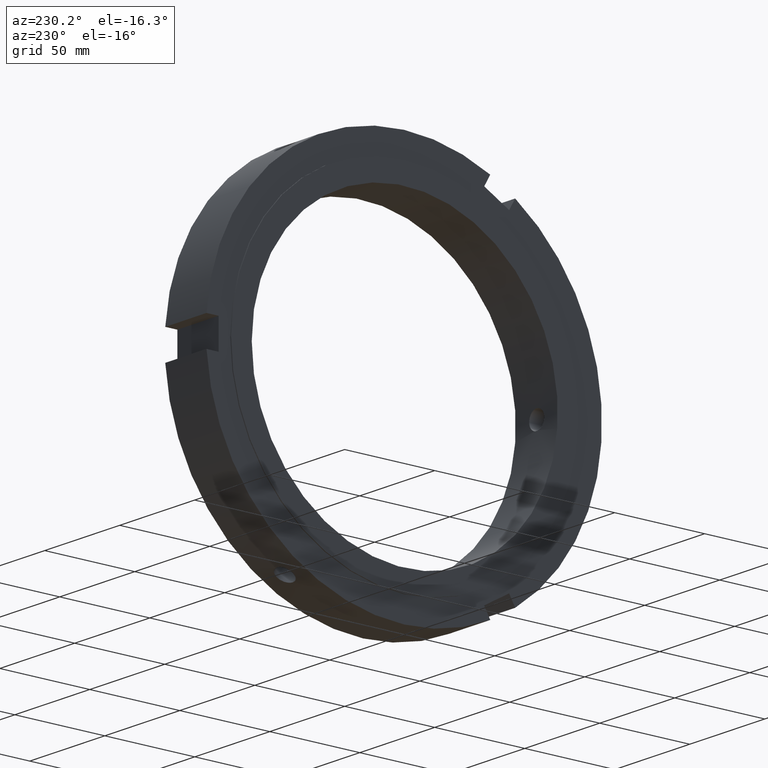
[diagram: clean part render]
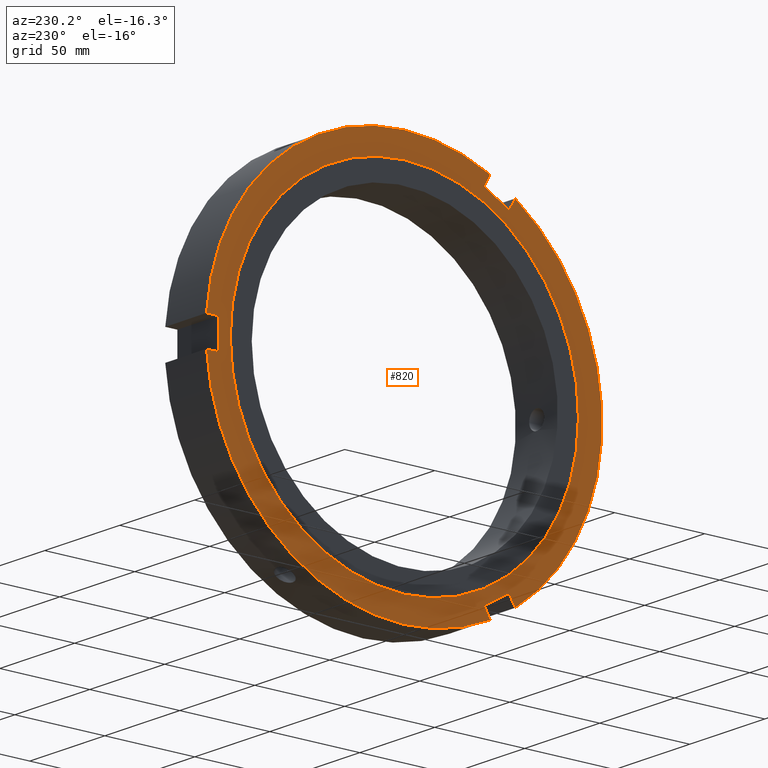
[diagram: same view with one face highlighted and labeled with its STEP entity id]
A machine part, auxiliary view. The second image highlights one B-rep face of the part: STEP entity #820.
In plain terms, the highlighted planar face has unit normal (-1, 0, 0).
Its self-contained STEP definition (entity closure, byte-faithful):
#73=CARTESIAN_POINT('',(0.499999999999972,-58.428203230275585,-85.200616589797164));
#74=VERTEX_POINT('',#73);
#75=CARTESIAN_POINT('',(0.499999999999967,-61.782555837885482,-91.010525732678673));
#76=VERTEX_POINT('',#75);
#77=CARTESIAN_POINT('',(0.499999999999967,-58.428203230275585,-85.200616589797178));
#78=DIRECTION('',(0.0,-0.500000000000000,-0.866025403784438));
#79=VECTOR('',#78,6.708705215219816);
#80=LINE('',#77,#79);
#81=EDGE_CURVE('',#74,#76,#80,.T.);
#113=CARTESIAN_POINT('',(0.499999999999967,-47.926149377334461,-99.010525732678687));
#114=VERTEX_POINT('',#113);
#115=CARTESIAN_POINT('',(0.499999999999972,-44.571796769724550,-93.200616589797164));
#116=VERTEX_POINT('',#115);
#117=CARTESIAN_POINT('',(0.499999999999969,-47.926149377334497,-99.010525732678701));
#118=DIRECTION('',(0.0,0.500000000000000,0.866025403784439));
#119=VECTOR('',#118,6.708705215219847);
#120=LINE('',#117,#119);
#121=EDGE_CURVE('',#114,#116,#120,.T.);
#153=CARTESIAN_POINT('',(0.499999999999967,-44.571796769724571,-93.200616589797164));
#154=DIRECTION('',(0.0,-0.866025403784438,0.500000000000001));
#155=VECTOR('',#154,16.000000000000011);
#156=LINE('',#153,#155);
#157=EDGE_CURVE('',#116,#74,#156,.T.);
#263=CARTESIAN_POINT('',(0.499999999999972,-44.571796769724479,93.200616589797221));
#264=VERTEX_POINT('',#263);
#265=CARTESIAN_POINT('',(0.499999999999967,-47.926149377334390,99.010525732678730));
#266=VERTEX_POINT('',#265);
#267=CARTESIAN_POINT('',(0.499999999999969,-44.571796769724479,93.200616589797221));
#268=DIRECTION('',(0.0,-0.500000000000002,0.866025403784438));
#269=VECTOR('',#268,6.708705215219788);
#270=LINE('',#267,#269);
#271=EDGE_CURVE('',#264,#266,#270,.T.);
#303=CARTESIAN_POINT('',(0.499999999999967,-61.782555837885404,91.010525732678715));
#304=VERTEX_POINT('',#303);
#305=CARTESIAN_POINT('',(0.499999999999972,-58.428203230275493,85.200616589797207));
#306=VERTEX_POINT('',#305);
#307=CARTESIAN_POINT('',(0.499999999999967,-61.782555837885425,91.010525732678730));
#308=DIRECTION('',(0.0,0.500000000000000,-0.866025403784439));
#309=VECTOR('',#308,6.708705215219828);
#310=LINE('',#307,#309);
#311=EDGE_CURVE('',#304,#306,#310,.T.);
#343=CARTESIAN_POINT('',(0.499999999999969,-58.428203230275500,85.200616589797207));
#344=DIRECTION('',(0.0,0.866025403784439,0.499999999999999));
#345=VECTOR('',#344,15.999999999999995);
#346=LINE('',#343,#345);
#347=EDGE_CURVE('',#306,#264,#346,.T.);
#527=CARTESIAN_POINT('',(0.499999999999967,109.708705215219820,7.999999999999994));
#528=VERTEX_POINT('',#527);
#535=CARTESIAN_POINT('',(0.499999999999967,0.0,0.0));
#536=DIRECTION('',(1.0,0.0,0.0));
#537=DIRECTION('',(0.0,1.0,0.0));
#538=AXIS2_PLACEMENT_3D('',#535,#536,#537);
#539=CIRCLE('',#538,110.0);
#540=EDGE_CURVE('',#528,#266,#539,.T.);
#554=CARTESIAN_POINT('',(0.499999999999967,109.708705215219820,-7.999999999999993));
#555=VERTEX_POINT('',#554);
#556=CARTESIAN_POINT('',(0.499999999999967,0.0,0.0));
#557=DIRECTION('',(1.0,0.0,0.0));
#558=DIRECTION('',(0.0,1.0,0.0));
#559=AXIS2_PLACEMENT_3D('',#556,#557,#558);
#560=CIRCLE('',#559,110.0);
#561=EDGE_CURVE('',#114,#555,#560,.T.);
#584=CARTESIAN_POINT('',(0.499999999999967,0.0,0.0));
#585=DIRECTION('',(1.0,0.0,0.0));
#586=DIRECTION('',(0.0,1.0,0.0));
#587=AXIS2_PLACEMENT_3D('',#584,#585,#586);
#588=CIRCLE('',#587,110.0);
#589=EDGE_CURVE('',#304,#76,#588,.T.);
#690=CARTESIAN_POINT('',(0.499999999999972,103.0,-7.999999999999995));
#691=VERTEX_POINT('',#690);
#692=CARTESIAN_POINT('',(0.499999999999969,103.0,-7.999999999999995));
#693=DIRECTION('',(0.0,1.0,0.0));
#694=VECTOR('',#693,6.708705215219823);
#695=LINE('',#692,#694);
#696=EDGE_CURVE('',#691,#555,#695,.T.);
#714=CARTESIAN_POINT('',(0.499999999999972,103.0,7.999999999999995));
#715=VERTEX_POINT('',#714);
#716=CARTESIAN_POINT('',(0.499999999999969,109.708705215219820,7.999999999999993));
#717=DIRECTION('',(0.0,-1.0,0.0));
#718=VECTOR('',#717,6.708705215219808);
#719=LINE('',#716,#718);
#720=EDGE_CURVE('',#528,#715,#719,.T.);
#738=CARTESIAN_POINT('',(0.499999999999969,103.0,7.999999999999995));
#739=DIRECTION('',(0.0,0.0,-1.0));
#740=VECTOR('',#739,15.999999999999989);
#741=LINE('',#738,#740);
#742=EDGE_CURVE('',#715,#691,#741,.T.);
#783=CARTESIAN_POINT('',(0.499999999999972,96.500000000000000,0.0));
#784=VERTEX_POINT('',#783);
#785=CARTESIAN_POINT('',(0.499999999999972,0.0,0.0));
#786=DIRECTION('',(1.0,0.0,0.0));
#787=DIRECTION('',(0.0,1.0,0.0));
#788=AXIS2_PLACEMENT_3D('',#785,#786,#787);
#789=CIRCLE('',#788,96.500000000000000);
#790=EDGE_CURVE('',#784,#784,#789,.T.);
#798=CARTESIAN_POINT('',(0.499999999999969,103.250000000000000,0.0));
#799=DIRECTION('',(-1.0,0.0,0.0));
#800=DIRECTION('',(0.0,0.0,1.0));
#801=AXIS2_PLACEMENT_3D('',#798,#799,#800);
#802=PLANE('',#801);
#803=ORIENTED_EDGE('',*,*,#81,.T.);
#804=ORIENTED_EDGE('',*,*,#589,.F.);
#805=ORIENTED_EDGE('',*,*,#311,.T.);
#806=ORIENTED_EDGE('',*,*,#347,.T.);
#807=ORIENTED_EDGE('',*,*,#271,.T.);
#808=ORIENTED_EDGE('',*,*,#540,.F.);
#809=ORIENTED_EDGE('',*,*,#720,.T.);
#810=ORIENTED_EDGE('',*,*,#742,.T.);
#811=ORIENTED_EDGE('',*,*,#696,.T.);
#812=ORIENTED_EDGE('',*,*,#561,.F.);
#813=ORIENTED_EDGE('',*,*,#121,.T.);
#814=ORIENTED_EDGE('',*,*,#157,.T.);
#815=EDGE_LOOP('',(#803,#804,#805,#806,#807,#808,#809,#810,#811,#812,#813,#814));
#816=FACE_OUTER_BOUND('',#815,.T.);
#817=ORIENTED_EDGE('',*,*,#790,.T.);
#818=EDGE_LOOP('',(#817));
#819=FACE_BOUND('',#818,.T.);
#820=ADVANCED_FACE('',(#816,#819),#802,.T.);